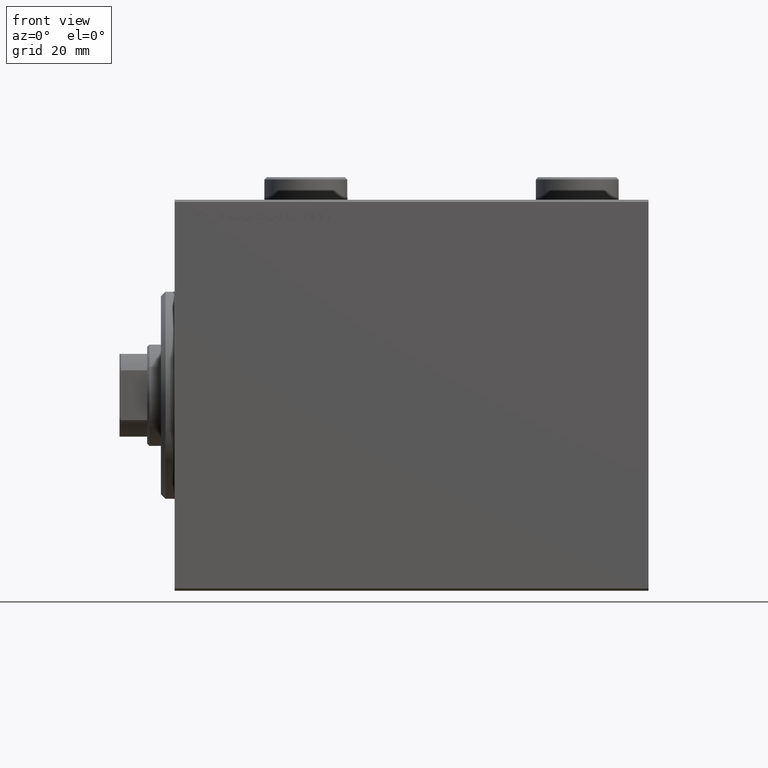
[diagram: clean part render]
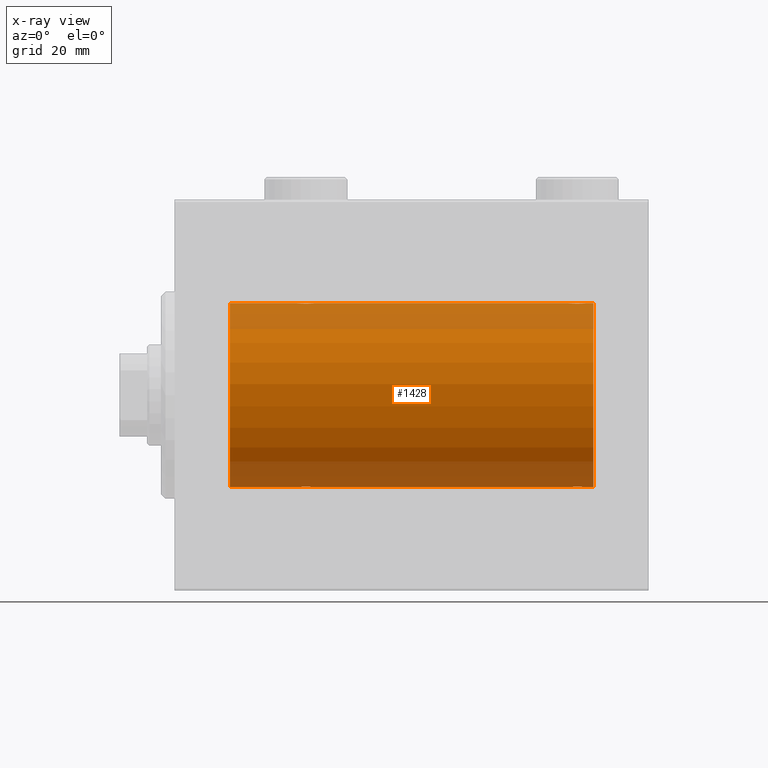
[diagram: x-ray — body ghosted, one internal face saturated and labeled with its STEP entity id]
A machine part, front view, then the same camera in x-ray: the body is ghosted and one INTERNAL B-rep face — a face not visible from any outside direction — is saturated and labeled: STEP entity #1428.
In plain terms, the highlighted cylindrical surface (partial cylindrical patch) has radius 20 mm, axis along (-1, -0, -0).
Its self-contained STEP definition (entity closure, byte-faithful):
#478 = VERTEX_POINT ( 'NONE', #30672 ) ;
#667 = CARTESIAN_POINT ( 'NONE',  ( 88.82096906847289119, -1.507328959728488238, 19.94333197382385947 ) ) ;
#677 = ORIENTED_EDGE ( 'NONE', *, *, #13501, .F. ) ;
#842 = CARTESIAN_POINT ( 'NONE',  ( 87.63365196142450486, -1.999898234284069432, -19.89975896996866211 ) ) ;
#1012 = DIRECTION ( 'NONE',  ( -1.000000000000000000, -0.000000000000000000, -0.000000000000000000 ) ) ;
#1077 = CARTESIAN_POINT ( 'NONE',  ( 86.49932780860756054, -1.736582545981379289, -19.92459705242981016 ) ) ;
#1198 = B_SPLINE_CURVE_WITH_KNOTS ( 'NONE', 3,
 ( #17686, #31760, #28295, #42346, #6389, #10789, #31063, #34290, #45095, #29219, #15157, #43478, #842, #39579, #32682, #14697, #25752, #14473, #1077, #42795, #36116, #28524, #29439, #25987, #22297, #43259 ),
 .UNSPECIFIED., .F., .F.,
 ( 4, 2, 2, 2, 2, 2, 2, 2, 2, 2, 2, 2, 4 ),
 ( 0.006256819553329824070, 0.007038738568778795009, 0.007820657584227765080, 0.008211617091952250549, 0.008602576599676736019, 0.008993536107401221488, 0.009384495615125706958, 0.009775455122850190692, 0.01016641463057467790, 0.01055737413829916163, 0.01094833364602364884, 0.01173025266147261630, 0.01251217167692158724 ),
 .UNSPECIFIED. ) ;
#1250 = EDGE_CURVE ( 'NONE', #45002, #12103, #23046, .T. ) ;
#1363 = ORIENTED_EDGE ( 'NONE', *, *, #24067, .T. ) ;
#1387 = EDGE_CURVE ( 'NONE', #17364, #35090, #24099, .T. ) ;
#1428 = ADVANCED_FACE ( 'NONE', ( #38246 ), #31351, .F. ) ;
#1513 = VECTOR ( 'NONE', #35951, 1000.000000000000000 ) ;
#2516 = EDGE_CURVE ( 'NONE', #20576, #35090, #39183, .T. ) ;
#2738 = CARTESIAN_POINT ( 'NONE',  ( 30.44679484191797414, -0.5270924491156706582, 19.99450181871975829 ) ) ;
#2964 = CARTESIAN_POINT ( 'NONE',  ( 29.82096906847289119, -1.507328959728493567, 19.94333197382385592 ) ) ;
#3434 = CARTESIAN_POINT ( 'NONE',  ( 27.85369326075355545, -1.897222639860597360, 19.90987429971497491 ) ) ;
#3666 = CARTESIAN_POINT ( 'NONE',  ( 27.27971054205535850, -1.589957321664211998, 19.93683391378736047 ) ) ;
#4132 = CARTESIAN_POINT ( 'NONE',  ( 85.90058475115969827, -1.228758402364240609, 19.96307487248084911 ) ) ;
#4352 = CARTESIAN_POINT ( 'NONE',  ( 91.00000000000000000, 0.000000000000000000, 20.00000000000000000 ) ) ;
#4412 = CARTESIAN_POINT ( 'NONE',  ( 28.63365196142448355, -1.999898234284062992, -19.89975896996866211 ) ) ;
#4558 = EDGE_CURVE ( 'NONE', #29326, #478, #24420, .T. ) ;
#4651 = ORIENTED_EDGE ( 'NONE', *, *, #1387, .T. ) ;
#4871 = CARTESIAN_POINT ( 'NONE',  ( 26.75313023696928738, -1.008108445278687704, -19.97602680192586533 ) ) ;
#4923 = CARTESIAN_POINT ( 'NONE',  ( 91.00000000000000000, 2.449293598294706513E-15, -20.00000000000000000 ) ) ;
#4998 = DIRECTION ( 'NONE',  ( 0.000000000000000000, 0.000000000000000000, 1.000000000000000000 ) ) ;
#5037 = CARTESIAN_POINT ( 'NONE',  ( 89.49999999999998579, -0.2644051013330985245, 19.99999999999999645 ) ) ;
#5091 = CARTESIAN_POINT ( 'NONE',  ( 29.01923512135276795, -1.935816449315124643, -19.90611141657401717 ) ) ;
#5409 = ORIENTED_EDGE ( 'NONE', *, *, #38974, .F. ) ;
#6389 = CARTESIAN_POINT ( 'NONE',  ( 89.09941524884030173, -1.228758402364235724, -19.96307487248084556 ) ) ;
#6786 = LINE ( 'NONE', #10021, #22929 ) ;
#7267 = EDGE_LOOP ( 'NONE', ( #29652, #45239, #1363, #20989, #41209, #22279, #20418, #677, #4651, #34530, #35683, #5409 ) ) ;
#7591 = EDGE_CURVE ( 'NONE', #21877, #16976, #6786, .T. ) ;
#7611 = CARTESIAN_POINT ( 'NONE',  ( 88.14348528733044930, -1.898187925611334315, 19.90978194174746818 ) ) ;
#7669 = CARTESIAN_POINT ( 'NONE',  ( 26.50000000000000355, -3.809869420541414000E-15, -20.00000000000000000 ) ) ;
#7804 = VECTOR ( 'NONE', #1012, 1000.000000000000000 ) ;
#8057 = CARTESIAN_POINT ( 'NONE',  ( 86.85369326075358742, -1.897222639860597360, 19.90987429971497491 ) ) ;
#8112 = CARTESIAN_POINT ( 'NONE',  ( 29.82306668919470383, -1.505486175075772870, -19.94347168299867334 ) ) ;
#8343 = CARTESIAN_POINT ( 'NONE',  ( 29.14630673924643744, -1.897222639860594029, -19.90987429971496780 ) ) ;
#10021 = CARTESIAN_POINT ( 'NONE',  ( 91.00000000000000000, 2.449293598294706513E-15, -20.00000000000000000 ) ) ;
#10142 = DIRECTION ( 'NONE',  ( 0.000000000000000000, 0.000000000000000000, 1.000000000000000000 ) ) ;
#10612 = CARTESIAN_POINT ( 'NONE',  ( 30.24686976303072328, -1.008108445278687926, 19.97602680192586888 ) ) ;
#10789 = CARTESIAN_POINT ( 'NONE',  ( 88.82306668919471804, -1.505486175075774646, -19.94347168299867334 ) ) ;
#10838 = CARTESIAN_POINT ( 'NONE',  ( 85.55244937117494430, -0.5243189001515019543, 19.99457699142849876 ) ) ;
#10927 = EDGE_CURVE ( 'NONE', #12103, #29326, #43368, .T. ) ;
#11524 = CARTESIAN_POINT ( 'NONE',  ( 86.17693331080532460, -1.505486175075777311, 19.94347168299868045 ) ) ;
#11533 = CARTESIAN_POINT ( 'NONE',  ( 91.00000000000000000, 0.000000000000000000, 20.00000000000000000 ) ) ;
#11683 = CARTESIAN_POINT ( 'NONE',  ( 11.99999999999999645, 2.449293598294706513E-15, -20.00000000000000000 ) ) ;
#11804 = CARTESIAN_POINT ( 'NONE',  ( 28.36941128289166159, -2.000100592782553921, -19.89973863218036598 ) ) ;
#11843 = CARTESIAN_POINT ( 'NONE',  ( 26.50000000000000355, -3.809869420541414000E-15, -20.00000000000000000 ) ) ;
#12103 = VERTEX_POINT ( 'NONE', #11843 ) ;
#12193 = DIRECTION ( 'NONE',  ( 0.000000000000000000, 0.000000000000000000, 1.000000000000000000 ) ) ;
#12649 = AXIS2_PLACEMENT_3D ( 'NONE', #32693, #25313, #4998 ) ;
#13362 = CARTESIAN_POINT ( 'NONE',  ( 27.49693443660397918, -1.735203193119897902, 19.92471783160911158 ) ) ;
#13501 = EDGE_CURVE ( 'NONE', #17364, #478, #14520, .T. ) ;
#13821 = CARTESIAN_POINT ( 'NONE',  ( 29.50067219139244656, -1.736582545981375292, 19.92459705242981371 ) ) ;
#13929 = CARTESIAN_POINT ( 'NONE',  ( 91.00000000000000000, 2.449293598294706513E-15, -20.00000000000000000 ) ) ;
#14055 = CARTESIAN_POINT ( 'NONE',  ( 26.50000000000000711, -0.2610801504281929919, 20.00000000000000000 ) ) ;
#14095 = CARTESIAN_POINT ( 'NONE',  ( 30.50000000000000000, -4.014971335008767791E-15, 20.00000000000000000 ) ) ;
#14290 = CARTESIAN_POINT ( 'NONE',  ( 85.49999999999998579, -1.553188236289650144E-23, 20.00000000000000000 ) ) ;
#14292 = CARTESIAN_POINT ( 'NONE',  ( 29.14348528733041377, -1.898187925611340088, 19.90978194174746818 ) ) ;
#14473 = CARTESIAN_POINT ( 'NONE',  ( 86.61420923329271204, -1.797933656607926700, -19.91908554465557302 ) ) ;
#14520 = LINE ( 'NONE', #4352, #22968 ) ;
#14697 = CARTESIAN_POINT ( 'NONE',  ( 86.98351467081094768, -1.936551476643015191, -19.90603968831098669 ) ) ;
#14977 = CARTESIAN_POINT ( 'NONE',  ( 88.01648532918903811, -1.936551476643001202, 19.90603968831098669 ) ) ;
#15157 = CARTESIAN_POINT ( 'NONE',  ( 88.01923512135279282, -1.935816449315129750, -19.90611141657401362 ) ) ;
#15258 = CARTESIAN_POINT ( 'NONE',  ( 27.98351467081095123, -1.936551476643005198, -19.90603968831098314 ) ) ;
#15425 = CARTESIAN_POINT ( 'NONE',  ( 86.27971054205535495, -1.589957321664204448, 19.93683391378736403 ) ) ;
#16230 = CARTESIAN_POINT ( 'NONE',  ( 89.50000000000000000, 9.984436361108698300E-16, 20.00000000000000000 ) ) ;
#16814 = CARTESIAN_POINT ( 'NONE',  ( 29.01648532918905943, -1.936551476643006753, 19.90603968831098669 ) ) ;
#16976 = VERTEX_POINT ( 'NONE', #28858 ) ;
#17032 = AXIS2_PLACEMENT_3D ( 'NONE', #34797, #38718, #10142 ) ;
#17043 = CARTESIAN_POINT ( 'NONE',  ( 30.50000000000000000, -4.014971335008767791E-15, 20.00000000000000000 ) ) ;
#17364 = VERTEX_POINT ( 'NONE', #32266 ) ;
#17506 = CARTESIAN_POINT ( 'NONE',  ( 27.98076487864722495, -1.935816449315125087, 19.90611141657401362 ) ) ;
#17561 = CARTESIAN_POINT ( 'NONE',  ( 30.50000000000000000, 2.449293582768389958E-15, -20.00000000000000000 ) ) ;
#17686 = CARTESIAN_POINT ( 'NONE',  ( 89.50000000000000000, 2.449293582762473501E-15, -20.00000000000000000 ) ) ;
#17741 = CARTESIAN_POINT ( 'NONE',  ( 27.61170562792909422, -1.796691196322319994, 19.91919800395357143 ) ) ;
#18659 = CARTESIAN_POINT ( 'NONE',  ( 88.71805419472150334, -1.591668229360190034, 19.93669678979813042 ) ) ;
#18713 = CARTESIAN_POINT ( 'NONE',  ( 27.17903093152710525, -1.507328959728492457, -19.94333197382385592 ) ) ;
#19087 = DIRECTION ( 'NONE',  ( -1.000000000000000000, 0.000000000000000000, 0.000000000000000000 ) ) ;
#19153 = CARTESIAN_POINT ( 'NONE',  ( 27.28194580527848601, -1.591668229360197140, -19.93669678979812332 ) ) ;
#19790 = CARTESIAN_POINT ( 'NONE',  ( 91.00000000000000000, 0.000000000000000000, 20.00000000000000000 ) ) ;
#19896 = VERTEX_POINT ( 'NONE', #16230 ) ;
#20418 = ORIENTED_EDGE ( 'NONE', *, *, #4558, .T. ) ;
#20576 = VERTEX_POINT ( 'NONE', #27344 ) ;
#20969 = CARTESIAN_POINT ( 'NONE',  ( 28.63058871710834552, -2.000100592782553921, 19.89973863218035888 ) ) ;
#20989 = ORIENTED_EDGE ( 'NONE', *, *, #23207, .T. ) ;
#21627 = B_SPLINE_CURVE_WITH_KNOTS ( 'NONE', 3,
 ( #14290, #42397, #10838, #22110, #4132, #11524, #15425, #32956, #25354, #8057, #26038, #22346, #36169, #43085, #35939, #14977, #7611, #36401, #40084, #18659, #667, #25801, #21885, #29488, #5037, #22572 ),
 .UNSPECIFIED., .F., .F.,
 ( 4, 2, 2, 2, 2, 2, 2, 2, 2, 2, 2, 2, 4 ),
 ( 0.006256819553329836213, 0.007038738568778784600, 0.007820657584227733855, 0.008211617091952222794, 0.008602576599676711733, 0.008993536107401198937, 0.009384495615125687876, 0.009775455122850176815, 0.01016641463057466402, 0.01055737413829915296, 0.01094833364602364190, 0.01173025266147261630, 0.01251217167692159418 ),
 .UNSPECIFIED. ) ;
#21725 = CARTESIAN_POINT ( 'NONE',  ( 28.76358144091416236, -1.986835489085814199, -19.90108393514801222 ) ) ;
#21729 = CARTESIAN_POINT ( 'NONE',  ( 91.00000000000000000, 2.449293598294706513E-15, -20.00000000000000000 ) ) ;
#21877 = VERTEX_POINT ( 'NONE', #13929 ) ;
#21885 = CARTESIAN_POINT ( 'NONE',  ( 89.24686976303071617, -1.008108445278681931, 19.97602680192586178 ) ) ;
#21941 = CARTESIAN_POINT ( 'NONE',  ( 26.55320515808203297, -0.5270924491156698810, -19.99450181871976184 ) ) ;
#22110 = CARTESIAN_POINT ( 'NONE',  ( 85.75174086539982454, -1.005710574260841872, 19.97614991974274190 ) ) ;
#22168 = CARTESIAN_POINT ( 'NONE',  ( 26.50000000000001066, -0.2644051013331030209, -20.00000000000000355 ) ) ;
#22279 = ORIENTED_EDGE ( 'NONE', *, *, #10927, .T. ) ;
#22297 = CARTESIAN_POINT ( 'NONE',  ( 85.50000000000001421, -0.2644051013331136790, -20.00000000000000355 ) ) ;
#22346 = CARTESIAN_POINT ( 'NONE',  ( 87.23641855908589093, -1.986835489085812867, 19.90108393514801577 ) ) ;
#22400 = CARTESIAN_POINT ( 'NONE',  ( 29.50306556339602437, -1.735203193119894349, -19.92471783160910803 ) ) ;
#22572 = CARTESIAN_POINT ( 'NONE',  ( 89.50000000000000000, 9.984436361108698300E-16, 20.00000000000000000 ) ) ;
#22929 = VECTOR ( 'NONE', #42038, 1000.000000000000000 ) ;
#22968 = VECTOR ( 'NONE', #42617, 1000.000000000000000 ) ;
#23046 = B_SPLINE_CURVE_WITH_KNOTS ( 'NONE', 3,
 ( #29322, #26092, #33008, #32786, #25414, #8112, #39460, #22400, #32331, #8343, #5091, #21725, #4412, #11804, #42676, #15258, #28635, #35778, #40140, #19153, #18713, #25858, #4871, #21941, #22168, #7669 ),
 .UNSPECIFIED., .F., .F.,
 ( 4, 2, 2, 2, 2, 2, 2, 2, 2, 2, 2, 2, 4 ),
 ( 0.006256819553329842284, 0.007038738568778818427, 0.007820657584227792836, 0.008211617091952278305, 0.008602576599676762040, 0.008993536107401245774, 0.009384495615125729509, 0.009775455122850213244, 0.01016641463057469871, 0.01055737413829918071, 0.01094833364602366618, 0.01173025266147263365, 0.01251217167692159939 ),
 .UNSPECIFIED. ) ;
#23207 = EDGE_CURVE ( 'NONE', #32900, #45002, #36508, .T. ) ;
#23854 = EDGE_CURVE ( 'NONE', #20576, #19896, #21627, .T. ) ;
#24067 = EDGE_CURVE ( 'NONE', #16976, #32900, #1198, .T. ) ;
#24099 = B_SPLINE_CURVE_WITH_KNOTS ( 'NONE', 3,
 ( #38947, #14055, #24673, #41702, #27884, #27428, #3666, #13362, #17741, #3434, #17506, #24900, #42165, #20969, #35030, #16814, #14292, #34339, #13821, #35256, #2964, #31584, #10612, #2738, #30879, #17043 ),
 .UNSPECIFIED., .F., .F.,
 ( 4, 2, 2, 2, 2, 2, 2, 2, 2, 2, 2, 2, 4 ),
 ( 0.006256819553329811059, 0.007038738568778783733, 0.007820657584227756406, 0.008211617091952238406, 0.008602576599676722141, 0.008993536107401204141, 0.009384495615125686141, 0.009775455122850168141, 0.01016641463057465014, 0.01055737413829913214, 0.01094833364602361414, 0.01173025266147257814, 0.01251217167692154214 ),
 .UNSPECIFIED. ) ;
#24420 = CIRCLE ( 'NONE', #12649, 20.00000000000000000 ) ;
#24673 = CARTESIAN_POINT ( 'NONE',  ( 26.55244937117492299, -0.5243189001515023984, 19.99457699142850586 ) ) ;
#24900 = CARTESIAN_POINT ( 'NONE',  ( 28.23641855908585541, -1.986835489085814643, 19.90108393514801222 ) ) ;
#25313 = DIRECTION ( 'NONE',  ( -1.000000000000000000, 0.000000000000000000, 0.000000000000000000 ) ) ;
#25354 = CARTESIAN_POINT ( 'NONE',  ( 86.61170562792906935, -1.796691196322320216, 19.91919800395356788 ) ) ;
#25414 = CARTESIAN_POINT ( 'NONE',  ( 30.09941524884030173, -1.228758402364235502, -19.96307487248084911 ) ) ;
#25752 = CARTESIAN_POINT ( 'NONE',  ( 86.85651471266957913, -1.898187925611348081, -19.90978194174746818 ) ) ;
#25801 = CARTESIAN_POINT ( 'NONE',  ( 89.09774691554730452, -1.230936344679272043, 19.96293863536309487 ) ) ;
#25858 = CARTESIAN_POINT ( 'NONE',  ( 26.90225308445269903, -1.230936344679278260, -19.96293863536309132 ) ) ;
#25987 = CARTESIAN_POINT ( 'NONE',  ( 85.55320515808205073, -0.5270924491156777636, -19.99450181871976540 ) ) ;
#26038 = CARTESIAN_POINT ( 'NONE',  ( 86.98076487864722139, -1.935816449315123977, 19.90611141657402072 ) ) ;
#26092 = CARTESIAN_POINT ( 'NONE',  ( 30.49999999999999645, -0.2610801504281900498, -19.99999999999999645 ) ) ;
#26580 = VECTOR ( 'NONE', #33858, 1000.000000000000000 ) ;
#27326 = VECTOR ( 'NONE', #39236, 1000.000000000000000 ) ;
#27344 = CARTESIAN_POINT ( 'NONE',  ( 85.49999999999998579, -1.553188236289650144E-23, 20.00000000000000000 ) ) ;
#27428 = CARTESIAN_POINT ( 'NONE',  ( 27.17693331080528907, -1.505486175075773758, 19.94347168299867690 ) ) ;
#27712 = EDGE_CURVE ( 'NONE', #21877, #31032, #40201, .T. ) ;
#27884 = CARTESIAN_POINT ( 'NONE',  ( 26.90058475115969827, -1.228758402364236391, 19.96307487248084556 ) ) ;
#28295 = CARTESIAN_POINT ( 'NONE',  ( 89.44755062882506991, -0.5243189001514980685, -19.99457699142850231 ) ) ;
#28524 = CARTESIAN_POINT ( 'NONE',  ( 85.90225308445272390, -1.230936344679285144, -19.96293863536309843 ) ) ;
#28635 = CARTESIAN_POINT ( 'NONE',  ( 27.85651471266959334, -1.898187925611338533, -19.90978194174746818 ) ) ;
#28858 = CARTESIAN_POINT ( 'NONE',  ( 89.50000000000000000, 2.449293582762473501E-15, -20.00000000000000000 ) ) ;
#29219 = CARTESIAN_POINT ( 'NONE',  ( 88.14630673924646942, -1.897222639860602245, -19.90987429971496425 ) ) ;
#29322 = CARTESIAN_POINT ( 'NONE',  ( 30.50000000000000000, 2.449293582768389958E-15, -20.00000000000000000 ) ) ;
#29326 = VERTEX_POINT ( 'NONE', #11683 ) ;
#29439 = CARTESIAN_POINT ( 'NONE',  ( 85.75313023696931225, -1.008108445278694587, -19.97602680192586888 ) ) ;
#29488 = CARTESIAN_POINT ( 'NONE',  ( 89.44679484191794927, -0.5270924491156651071, 19.99450181871975829 ) ) ;
#29652 = ORIENTED_EDGE ( 'NONE', *, *, #27712, .F. ) ;
#30672 = CARTESIAN_POINT ( 'NONE',  ( 11.99999999999999645, 0.000000000000000000, 20.00000000000000000 ) ) ;
#30879 = CARTESIAN_POINT ( 'NONE',  ( 30.49999999999999289, -0.2644051013330969702, 20.00000000000000711 ) ) ;
#31032 = VERTEX_POINT ( 'NONE', #34341 ) ;
#31063 = CARTESIAN_POINT ( 'NONE',  ( 88.72028945794461663, -1.589957321664213330, -19.93683391378736758 ) ) ;
#31351 = CYLINDRICAL_SURFACE ( 'NONE', #17032, 20.00000000000000000 ) ;
#31584 = CARTESIAN_POINT ( 'NONE',  ( 30.09774691554730097, -1.230936344679278482, 19.96293863536309132 ) ) ;
#31760 = CARTESIAN_POINT ( 'NONE',  ( 89.50000000000001421, -0.2610801504281911045, -19.99999999999999645 ) ) ;
#32266 = CARTESIAN_POINT ( 'NONE',  ( 26.50000000000000355, -1.552596590610734385E-23, 20.00000000000000000 ) ) ;
#32331 = CARTESIAN_POINT ( 'NONE',  ( 29.38829437207091999, -1.796691196322316664, -19.91919800395357143 ) ) ;
#32682 = CARTESIAN_POINT ( 'NONE',  ( 87.23922743968432769, -1.987205673487818514, -19.90104673894210663 ) ) ;
#32693 = CARTESIAN_POINT ( 'NONE',  ( 11.99999999999999645, 0.000000000000000000, 0.000000000000000000 ) ) ;
#32786 = CARTESIAN_POINT ( 'NONE',  ( 30.24825913460018612, -1.005710574260838985, -19.97614991974274190 ) ) ;
#32900 = VERTEX_POINT ( 'NONE', #40098 ) ;
#32956 = CARTESIAN_POINT ( 'NONE',  ( 86.49693443660396497, -1.735203193119890352, 19.92471783160910803 ) ) ;
#33008 = CARTESIAN_POINT ( 'NONE',  ( 30.44755062882508412, -0.5243189001514996228, -19.99457699142849876 ) ) ;
#33858 = DIRECTION ( 'NONE',  ( -1.000000000000000000, -0.000000000000000000, -0.000000000000000000 ) ) ;
#34290 = CARTESIAN_POINT ( 'NONE',  ( 88.50306556339602082, -1.735203193119900122, -19.92471783160911158 ) ) ;
#34339 = CARTESIAN_POINT ( 'NONE',  ( 29.38579076670729151, -1.797933656607919817, 19.91908554465558367 ) ) ;
#34341 = CARTESIAN_POINT ( 'NONE',  ( 91.00000000000000000, 0.000000000000000000, 20.00000000000000000 ) ) ;
#34530 = ORIENTED_EDGE ( 'NONE', *, *, #2516, .F. ) ;
#34797 = CARTESIAN_POINT ( 'NONE',  ( 91.00000000000000000, 0.000000000000000000, 0.000000000000000000 ) ) ;
#35030 = CARTESIAN_POINT ( 'NONE',  ( 28.76077256031567586, -1.987205673487810298, 19.90104673894210663 ) ) ;
#35090 = VERTEX_POINT ( 'NONE', #14095 ) ;
#35256 = CARTESIAN_POINT ( 'NONE',  ( 29.71805419472152110, -1.591668229360196252, 19.93669678979812332 ) ) ;
#35683 = ORIENTED_EDGE ( 'NONE', *, *, #23854, .T. ) ;
#35778 = CARTESIAN_POINT ( 'NONE',  ( 27.61420923329272981, -1.797933656607917596, -19.91908554465558367 ) ) ;
#35939 = CARTESIAN_POINT ( 'NONE',  ( 87.76077256031567231, -1.987205673487806967, 19.90104673894210663 ) ) ;
#35951 = DIRECTION ( 'NONE',  ( -1.000000000000000000, -0.000000000000000000, -0.000000000000000000 ) ) ;
#36116 = CARTESIAN_POINT ( 'NONE',  ( 86.17903093152710881, -1.507328959728500006, -19.94333197382386302 ) ) ;
#36169 = CARTESIAN_POINT ( 'NONE',  ( 87.36634803857553777, -1.999898234284061216, 19.89975896996866922 ) ) ;
#36401 = CARTESIAN_POINT ( 'NONE',  ( 88.38579076670728796, -1.797933656607910713, 19.91908554465557657 ) ) ;
#36508 = LINE ( 'NONE', #4923, #7804 ) ;
#36608 = CARTESIAN_POINT ( 'NONE',  ( 91.00000000000000000, 0.000000000000000000, 0.000000000000000000 ) ) ;
#37310 = LINE ( 'NONE', #19790, #26580 ) ;
#38246 = FACE_OUTER_BOUND ( 'NONE', #7267, .T. ) ;
#38718 = DIRECTION ( 'NONE',  ( -1.000000000000000000, -0.000000000000000000, -0.000000000000000000 ) ) ;
#38947 = CARTESIAN_POINT ( 'NONE',  ( 26.50000000000000355, -1.552596590610734385E-23, 20.00000000000000000 ) ) ;
#38974 = EDGE_CURVE ( 'NONE', #31032, #19896, #37310, .T. ) ;
#39183 = LINE ( 'NONE', #11533, #1513 ) ;
#39236 = DIRECTION ( 'NONE',  ( -1.000000000000000000, -0.000000000000000000, -0.000000000000000000 ) ) ;
#39460 = CARTESIAN_POINT ( 'NONE',  ( 29.72028945794465571, -1.589957321664208223, -19.93683391378736047 ) ) ;
#39579 = CARTESIAN_POINT ( 'NONE',  ( 87.36941128289164737, -2.000100592782561471, -19.89973863218036243 ) ) ;
#40084 = CARTESIAN_POINT ( 'NONE',  ( 88.50067219139242525, -1.736582545981368852, 19.92459705242980661 ) ) ;
#40098 = CARTESIAN_POINT ( 'NONE',  ( 85.49999999999998579, -1.207436508668459186E-14, -20.00000000000000000 ) ) ;
#40140 = CARTESIAN_POINT ( 'NONE',  ( 27.49932780860757475, -1.736582545981376180, -19.92459705242981371 ) ) ;
#40201 = CIRCLE ( 'NONE', #44570, 20.00000000000000000 ) ;
#41209 = ORIENTED_EDGE ( 'NONE', *, *, #1250, .T. ) ;
#41702 = CARTESIAN_POINT ( 'NONE',  ( 26.75174086539981033, -1.005710574260841206, 19.97614991974274190 ) ) ;
#42038 = DIRECTION ( 'NONE',  ( -1.000000000000000000, -0.000000000000000000, -0.000000000000000000 ) ) ;
#42165 = CARTESIAN_POINT ( 'NONE',  ( 28.36634803857552001, -1.999898234284063436, 19.89975896996866211 ) ) ;
#42346 = CARTESIAN_POINT ( 'NONE',  ( 89.24825913460018967, -1.005710574260839651, -19.97614991974274901 ) ) ;
#42397 = CARTESIAN_POINT ( 'NONE',  ( 85.50000000000000000, -0.2610801504281927699, 20.00000000000000355 ) ) ;
#42617 = DIRECTION ( 'NONE',  ( -1.000000000000000000, -0.000000000000000000, -0.000000000000000000 ) ) ;
#42676 = CARTESIAN_POINT ( 'NONE',  ( 28.23922743968432059, -1.987205673487808966, -19.90104673894211018 ) ) ;
#42795 = CARTESIAN_POINT ( 'NONE',  ( 86.28194580527849666, -1.591668229360199804, -19.93669678979812687 ) ) ;
#43085 = CARTESIAN_POINT ( 'NONE',  ( 87.63058871710828157, -2.000100592782551256, 19.89973863218035888 ) ) ;
#43259 = CARTESIAN_POINT ( 'NONE',  ( 85.49999999999998579, -1.207436508668459186E-14, -20.00000000000000000 ) ) ;
#43368 = LINE ( 'NONE', #21729, #27326 ) ;
#43478 = CARTESIAN_POINT ( 'NONE',  ( 87.76358144091418012, -1.986835489085820639, -19.90108393514801222 ) ) ;
#44570 = AXIS2_PLACEMENT_3D ( 'NONE', #36608, #19087, #12193 ) ;
#45002 = VERTEX_POINT ( 'NONE', #17561 ) ;
#45095 = CARTESIAN_POINT ( 'NONE',  ( 88.38829437207088802, -1.796691196322323103, -19.91919800395357143 ) ) ;
#45239 = ORIENTED_EDGE ( 'NONE', *, *, #7591, .T. ) ;